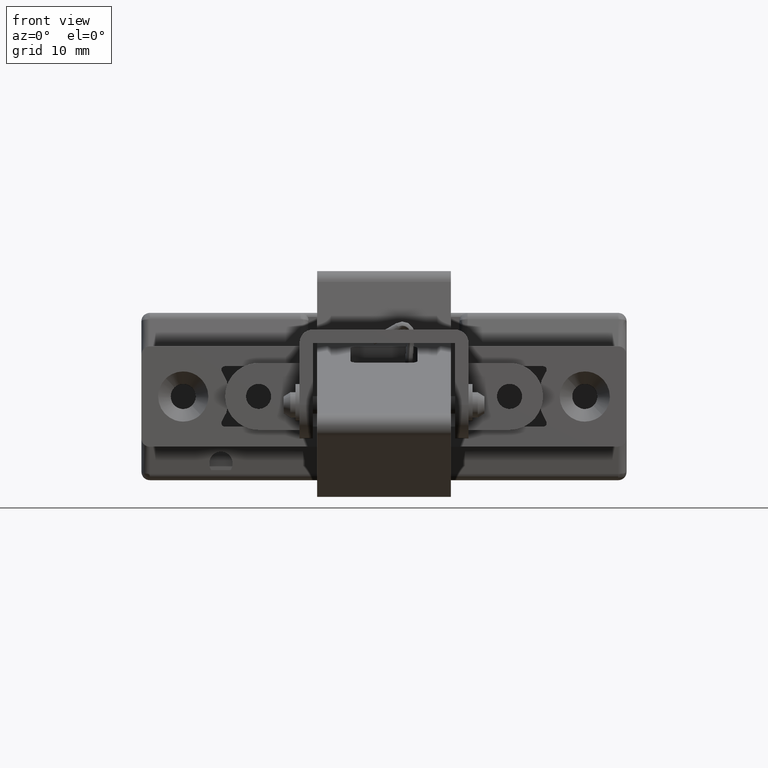
[diagram: clean part render]
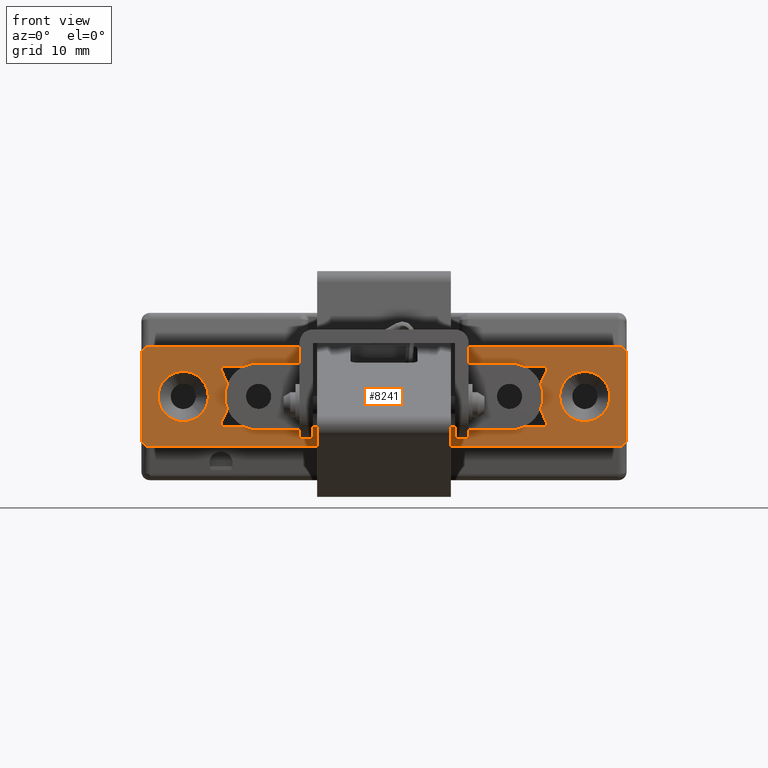
[diagram: same view with one face highlighted and labeled with its STEP entity id]
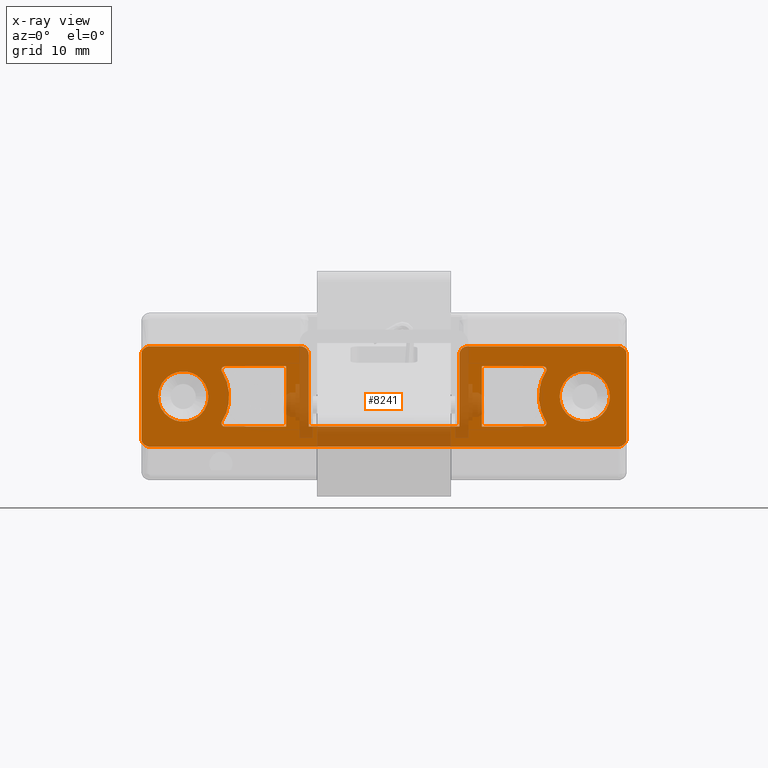
[diagram: x-ray of the same camera — body ghosted, the highlighted face saturated]
A machine part, front view. The second image highlights one B-rep face of the part: STEP entity #8241.
The next image is the same camera in x-ray: the body ghosted, the highlighted face saturated — about 20% of this face is hidden behind the body in this view.
In plain terms, the highlighted face is a freeform B-spline surface patch.
Its self-contained STEP definition (entity closure, byte-faithful):
#5207=CARTESIAN_POINT('',(-21.934936870026011,8.600001863609514,-1.176122483819216));
#5208=VERTEX_POINT('',#5207);
#5214=CARTESIAN_POINT('',(-21.000000000000892,8.600001574462887,1.000002316347126));
#5215=VERTEX_POINT('',#5214);
#5216=CARTESIAN_POINT('',(-21.934936870026011,8.600001863609514,-1.176122483819216));
#5217=CARTESIAN_POINT('',(-21.769330079526611,8.600001842736333,-1.019030040535998));
#5218=CARTESIAN_POINT('',(-21.490684678965462,8.600001798533370,-0.686358400947592));
#5219=CARTESIAN_POINT('',(-21.112516988428808,8.600001702487283,0.036490042469381));
#5220=CARTESIAN_POINT('',(-20.999606290084891,8.600001625020184,0.619504733129576));
#5221=CARTESIAN_POINT('',(-21.000000000000892,8.600001574462887,1.000002316347126));
#5222=B_SPLINE_CURVE_WITH_KNOTS('',3,(#5216,#5217,#5218,#5219,#5220,#5221),.UNSPECIFIED.,.F.,.U.,(4,1,1,4),(0.000000021353518,0.684787980849749,1.293487832255275,2.434801507614659),.UNSPECIFIED.);
#5223=EDGE_CURVE('',#5208,#5215,#5222,.T.);
#5225=CARTESIAN_POINT('',(-24.0,8.600001574462887,4.0));
#5226=VERTEX_POINT('',#5225);
#5227=CARTESIAN_POINT('',(-21.000000000000892,8.600001574462887,1.000002316347126));
#5228=CARTESIAN_POINT('',(-20.999648457065451,8.600001574462922,1.368218827966611));
#5229=CARTESIAN_POINT('',(-21.105310213641399,8.600001574462780,1.932450565423788));
#5230=CARTESIAN_POINT('',(-21.482336201270559,8.600001574463029,2.681457940744734));
#5231=CARTESIAN_POINT('',(-21.976607207528790,8.600001574462830,3.269017595811709));
#5232=CARTESIAN_POINT('',(-22.616134922671030,8.600001574462787,3.696312454333611));
#5233=CARTESIAN_POINT('',(-23.312811768276180,8.600001574463072,3.945457808376830));
#5234=CARTESIAN_POINT('',(-23.754562744427069,8.600001574462738,4.000062684554560));
#5235=CARTESIAN_POINT('',(-24.0,8.600001574462887,4.0));
#5236=B_SPLINE_CURVE_WITH_KNOTS('',3,(#5227,#5228,#5229,#5230,#5231,#5232,#5233,#5234,#5235),.UNSPECIFIED.,.F.,.U.,(4,1,1,1,1,1,4),(0.000000045917643,1.104490683992258,1.693570454718966,2.503515224525072,3.387107495327922,3.976190981014883,4.712505927439493),.UNSPECIFIED.);
#5237=EDGE_CURVE('',#5215,#5226,#5236,.T.);
#5239=CARTESIAN_POINT('',(-26.065063129973989,8.600001863609521,3.176122483819214));
#5240=VERTEX_POINT('',#5239);
#5241=CARTESIAN_POINT('',(-24.0,8.600001574462887,4.0));
#5242=CARTESIAN_POINT('',(-24.189803381663669,8.600001601038855,4.000011779235152));
#5243=CARTESIAN_POINT('',(-24.640594101383169,8.600001664157809,3.957133647381435));
#5244=CARTESIAN_POINT('',(-25.367363848230291,8.600001765918897,3.716082278679606));
#5245=CARTESIAN_POINT('',(-25.841426058480369,8.600001832296321,3.388560804448808));
#5246=CARTESIAN_POINT('',(-26.065063129973989,8.600001863609521,3.176122483819214));
#5247=B_SPLINE_CURVE_WITH_KNOTS('',3,(#5241,#5242,#5243,#5244,#5245,#5246),.UNSPECIFIED.,.F.,.U.,(4,1,1,4),(0.000000027667876,0.569426959179674,1.352380202538002,2.277707753460141),.UNSPECIFIED.);
#5248=EDGE_CURVE('',#5226,#5240,#5247,.T.);
#5284=CARTESIAN_POINT('',(-26.999999999999108,8.600001574462887,0.999997683652868));
#5285=VERTEX_POINT('',#5284);
#5286=CARTESIAN_POINT('',(-26.065063129973989,8.600001863609521,3.176122483819214));
#5287=CARTESIAN_POINT('',(-26.304398968574318,8.600001833471680,2.949305599258741));
#5288=CARTESIAN_POINT('',(-26.629373570689609,8.600001776198504,2.518263779302797));
#5289=CARTESIAN_POINT('',(-26.932287788437598,8.600001675553067,1.760805472212806));
#5290=CARTESIAN_POINT('',(-27.000092546114310,8.600001611532662,1.278985865811381));
#5291=CARTESIAN_POINT('',(-26.999999999999108,8.600001574462887,0.999997683652868));
#5292=B_SPLINE_CURVE_WITH_KNOTS('',3,(#5286,#5287,#5288,#5289,#5290,#5291),.UNSPECIFIED.,.F.,.U.,(4,1,1,4),(0.000000021353332,0.989138760576690,1.597838172398296,2.434801507614661),.UNSPECIFIED.);
#5293=EDGE_CURVE('',#5240,#5285,#5292,.T.);
#5295=CARTESIAN_POINT('',(-24.0,8.600001574462887,-2.0));
#5296=VERTEX_POINT('',#5295);
#5297=CARTESIAN_POINT('',(-26.999999999999108,8.600001574462887,0.999997683652868));
#5298=CARTESIAN_POINT('',(-27.000350169062191,8.600001574462908,0.631781022421027));
#5299=CARTESIAN_POINT('',(-26.894690375594141,8.600001574462844,0.067550730723855));
#5300=CARTESIAN_POINT('',(-26.517666414313240,8.600001574463015,-0.681465716639533));
#5301=CARTESIAN_POINT('',(-26.087145248218938,8.600001574462823,-1.193151184888421));
#5302=CARTESIAN_POINT('',(-25.552247553645099,8.600001574462816,-1.589763091005514));
#5303=CARTESIAN_POINT('',(-24.883432834927451,8.600001574463079,-1.906170359497045));
#5304=CARTESIAN_POINT('',(-24.343648430978192,8.600001574462709,-2.000244412533779));
#5305=CARTESIAN_POINT('',(-24.0,8.600001574462887,-2.0));
#5306=B_SPLINE_CURVE_WITH_KNOTS('',3,(#5297,#5298,#5299,#5300,#5301,#5302,#5303,#5304,#5305),.UNSPECIFIED.,.F.,.U.,(4,1,1,1,1,1,4),(0.000000045918904,1.104490683993163,1.693570454719709,2.503515224525626,3.092567931035752,3.681651415329908,4.712505927439492),.UNSPECIFIED.);
#5307=EDGE_CURVE('',#5285,#5296,#5306,.T.);
#5309=CARTESIAN_POINT('',(-24.0,8.600001574462887,-2.0));
#5310=CARTESIAN_POINT('',(-23.644077714742881,8.600001624298585,-2.000276917367970));
#5311=CARTESIAN_POINT('',(-22.885096753272791,8.600001730569503,-1.863205912246193));
#5312=CARTESIAN_POINT('',(-22.227215888957168,8.600001822685385,-1.454180365256255));
#5313=CARTESIAN_POINT('',(-21.934936870026011,8.600001863609514,-1.176122483819216));
#5314=B_SPLINE_CURVE_WITH_KNOTS('',3,(#5309,#5310,#5311,#5312,#5313),.UNSPECIFIED.,.F.,.U.,(4,1,4),(0.000000027667611,1.067680060700980,2.277707753460144),.UNSPECIFIED.);
#5315=EDGE_CURVE('',#5296,#5208,#5314,.T.);
#5483=CARTESIAN_POINT('',(26.065063129973989,8.600001863609514,-1.176122483819217));
#5484=VERTEX_POINT('',#5483);
#5490=CARTESIAN_POINT('',(26.999999999999108,8.600001574462887,1.000002316347126));
#5491=VERTEX_POINT('',#5490);
#5492=CARTESIAN_POINT('',(26.065063129973989,8.600001863609514,-1.176122483819217));
#5493=CARTESIAN_POINT('',(26.341344716576820,8.600001828845841,-0.914489462378228));
#5494=CARTESIAN_POINT('',(26.656480604464949,8.600001770222512,-0.473289776609436));
#5495=CARTESIAN_POINT('',(26.939391639276650,8.600001668811629,0.289932710950813));
#5496=CARTESIAN_POINT('',(27.000101525505769,8.600001611533415,0.721007443260770));
#5497=CARTESIAN_POINT('',(26.999999999999108,8.600001574462887,1.000002316347126));
#5498=B_SPLINE_CURVE_WITH_KNOTS('',3,(#5492,#5493,#5494,#5495,#5496,#5497),.UNSPECIFIED.,.F.,.U.,(4,1,1,4),(0.000000021353209,1.141313696580520,1.597838172398286,2.434801507614653),.UNSPECIFIED.);
#5499=EDGE_CURVE('',#5484,#5491,#5498,.T.);
#5501=CARTESIAN_POINT('',(24.0,8.600001574462887,4.0));
#5502=VERTEX_POINT('',#5501);
#5503=CARTESIAN_POINT('',(26.999999999999108,8.600001574462887,1.000002316347126));
#5504=CARTESIAN_POINT('',(27.000354754296271,8.600001574462965,1.368220831818718));
#5505=CARTESIAN_POINT('',(26.894679530675749,8.600001574462830,1.932442082294269));
#5506=CARTESIAN_POINT('',(26.517680681340838,8.600001574462837,2.681475183810091));
#5507=CARTESIAN_POINT('',(26.087130199448708,8.600001574463057,3.193131953860975));
#5508=CARTESIAN_POINT('',(25.473044053613741,8.600001574462702,3.648627251801658));
#5509=CARTESIAN_POINT('',(24.785413433775130,8.600001574463342,3.933449836966517));
#5510=CARTESIAN_POINT('',(24.245429020158969,8.600001574462020,4.000039475886011));
#5511=CARTESIAN_POINT('',(24.0,8.600001574462887,4.0));
#5512=B_SPLINE_CURVE_WITH_KNOTS('',3,(#5503,#5504,#5505,#5506,#5507,#5508,#5509,#5510,#5511),.UNSPECIFIED.,.F.,.U.,(4,1,1,1,1,1,4),(0.000000045920274,1.104490683994108,1.693570454720435,2.503515224526053,3.092567931035931,3.976190981015049,4.712505927439490),.UNSPECIFIED.);
#5513=EDGE_CURVE('',#5491,#5502,#5512,.T.);
#5515=CARTESIAN_POINT('',(21.934936870026011,8.600001863609506,3.176122483819217));
#5516=VERTEX_POINT('',#5515);
#5517=CARTESIAN_POINT('',(24.0,8.600001574462887,4.0));
#5518=CARTESIAN_POINT('',(23.691543518219781,8.600001617652431,4.000154335041777));
#5519=CARTESIAN_POINT('',(23.193415805425001,8.600001687399491,3.922450598432195));
#5520=CARTESIAN_POINT('',(22.491967998992699,8.600001785614893,3.623094545139219));
#5521=CARTESIAN_POINT('',(22.124198392185018,8.600001837109524,3.355832437550590));
#5522=CARTESIAN_POINT('',(21.934936870026011,8.600001863609506,3.176122483819217));
#5523=B_SPLINE_CURVE_WITH_KNOTS('',3,(#5517,#5518,#5519,#5520,#5521,#5522),.UNSPECIFIED.,.F.,.U.,(4,1,1,4),(0.000000027667177,0.925327578611280,1.494738078887079,2.277707753460154),.UNSPECIFIED.);
#5524=EDGE_CURVE('',#5502,#5516,#5523,.T.);
#5560=CARTESIAN_POINT('',(21.000000000000892,8.600001574462880,0.999997683652869));
#5561=VERTEX_POINT('',#5560);
#5562=CARTESIAN_POINT('',(21.934936870026011,8.600001863609506,3.176122483819217));
#5563=CARTESIAN_POINT('',(21.769330313869489,8.600001842736511,3.019031761277854));
#5564=CARTESIAN_POINT('',(21.490684022060940,8.600001798533185,2.686356536429725));
#5565=CARTESIAN_POINT('',(21.112516633324741,8.600001702487099,1.963510399972654));
#5566=CARTESIAN_POINT('',(20.999608068874078,8.600001625020674,1.380496699390820));
#5567=CARTESIAN_POINT('',(21.000000000000892,8.600001574462880,0.999997683652869));
#5568=B_SPLINE_CURVE_WITH_KNOTS('',3,(#5562,#5563,#5564,#5565,#5566,#5567),.UNSPECIFIED.,.F.,.U.,(4,1,1,4),(0.000000021353088,0.684787980849486,1.293487832255167,2.434801507614660),.UNSPECIFIED.);
#5569=EDGE_CURVE('',#5516,#5561,#5568,.T.);
#5571=CARTESIAN_POINT('',(24.0,8.600001574462887,-2.0));
#5572=VERTEX_POINT('',#5571);
#5573=CARTESIAN_POINT('',(21.000000000000892,8.600001574462880,0.999997683652869));
#5574=CARTESIAN_POINT('',(20.999834320340650,8.600001574462866,0.680909506954153));
#5575=CARTESIAN_POINT('',(21.083035720084919,8.600001574462795,0.165618724409334));
#5576=CARTESIAN_POINT('',(21.422808894836379,8.600001574463022,-0.601033174363167));
#5577=CARTESIAN_POINT('',(21.873147772842341,8.600001574462887,-1.163836467429129));
#5578=CARTESIAN_POINT('',(22.447771644858761,8.600001574462866,-1.589752180252324));
#5579=CARTESIAN_POINT('',(23.116569855990360,8.600001574462937,-1.906147667127998));
#5580=CARTESIAN_POINT('',(23.656350074950879,8.600001574462887,-2.000268605916505));
#5581=CARTESIAN_POINT('',(24.0,8.600001574462887,-2.0));
#5582=B_SPLINE_CURVE_WITH_KNOTS('',3,(#5573,#5574,#5575,#5576,#5577,#5578,#5579,#5580,#5581),.UNSPECIFIED.,.F.,.U.,(4,1,1,1,1,1,4),(0.000000045918001,0.957218893366678,1.546303359711513,2.503515224525304,3.092567931035563,3.681651415329818,4.712505927439497),.UNSPECIFIED.);
#5583=EDGE_CURVE('',#5561,#5572,#5582,.T.);
#5585=CARTESIAN_POINT('',(24.0,8.600001574462887,-2.0));
#5586=CARTESIAN_POINT('',(24.403415125098519,8.600001630948306,-2.000500775928558));
#5587=CARTESIAN_POINT('',(25.162177964888510,8.600001737189196,-1.844348533342900));
#5588=CARTESIAN_POINT('',(25.807076368901690,8.600001827486651,-1.421323877760019));
#5589=CARTESIAN_POINT('',(26.065063129973989,8.600001863609514,-1.176122483819217));
#5590=B_SPLINE_CURVE_WITH_KNOTS('',3,(#5585,#5586,#5587,#5588,#5589),.UNSPECIFIED.,.F.,.U.,(4,1,4),(0.000000027666575,1.210027720350886,2.277707753460151),.UNSPECIFIED.);
#5591=EDGE_CURVE('',#5572,#5484,#5590,.T.);
#6666=CARTESIAN_POINT('',(-28.0,8.600001574462887,7.0));
#6667=VERTEX_POINT('',#6666);
#6668=CARTESIAN_POINT('',(-29.0,8.600001574462887,6.0));
#6669=VERTEX_POINT('',#6668);
#6670=CARTESIAN_POINT('',(-28.0,8.600001574462887,7.0));
#6671=CARTESIAN_POINT('',(-28.130930301839630,8.600001574462951,7.000156741388042));
#6672=CARTESIAN_POINT('',(-28.343512062586338,8.600001574462880,6.957582490994970));
#6673=CARTESIAN_POINT('',(-28.623262231982999,8.600001574462944,6.799142954395056));
#6674=CARTESIAN_POINT('',(-28.796839233856311,8.600001574462880,6.621240393916221));
#6675=CARTESIAN_POINT('',(-28.953976564198499,8.600001574462901,6.351626464571268));
#6676=CARTESIAN_POINT('',(-29.000234262794461,8.600001574462901,6.147318090989190));
#6677=CARTESIAN_POINT('',(-29.0,8.600001574462887,6.0));
#6678=B_SPLINE_CURVE_WITH_KNOTS('',3,(#6670,#6671,#6672,#6673,#6674,#6675,#6676,#6677),.UNSPECIFIED.,.F.,.U.,(4,1,1,1,1,4),(0.000000279997836,0.392709146095597,0.638180683295783,0.957225879064779,1.129035262302666,1.570835744388566),.UNSPECIFIED.);
#6679=EDGE_CURVE('',#6667,#6669,#6678,.T.);
#6788=CARTESIAN_POINT('',(-29.0,8.600001574462887,-4.0));
#6789=VERTEX_POINT('',#6788);
#6790=CARTESIAN_POINT('',(-28.0,8.600001574462887,-5.0));
#6791=VERTEX_POINT('',#6790);
#6792=CARTESIAN_POINT('',(-29.0,8.600001574462887,-4.0));
#6793=CARTESIAN_POINT('',(-29.000224541102732,8.600001574462887,-4.147300637481775));
#6794=CARTESIAN_POINT('',(-28.942907750886739,8.600001574462930,-4.400720712991858));
#6795=CARTESIAN_POINT('',(-28.717942977219799,8.600001574462631,-4.728777161010343));
#6796=CARTESIAN_POINT('',(-28.400836381079170,8.600001574463626,-4.946296087896523));
#6797=CARTESIAN_POINT('',(-28.130907834079601,8.600001574461523,-5.000122441849071));
#6798=CARTESIAN_POINT('',(-28.0,8.600001574462887,-5.0));
#6799=B_SPLINE_CURVE_WITH_KNOTS('',3,(#6792,#6793,#6794,#6795,#6796,#6797,#6798),.UNSPECIFIED.,.F.,.U.,(4,1,1,1,4),(0.000000279995330,0.441800762081835,0.760915527725580,1.178126878290096,1.570835744388615),.UNSPECIFIED.);
#6800=EDGE_CURVE('',#6789,#6791,#6799,.T.);
#6914=CARTESIAN_POINT('',(29.0,8.600001574462887,6.0));
#6915=VERTEX_POINT('',#6914);
#6916=CARTESIAN_POINT('',(28.0,8.600001574462887,7.0));
#6917=VERTEX_POINT('',#6916);
#6918=CARTESIAN_POINT('',(29.0,8.600001574462887,6.0));
#6919=CARTESIAN_POINT('',(29.000214112180721,8.600001574462908,6.147302172775362));
#6920=CARTESIAN_POINT('',(28.937436686232591,8.600001574462901,6.425258301743768));
#6921=CARTESIAN_POINT('',(28.699002085988170,8.600001574462901,6.746857558640517));
#6922=CARTESIAN_POINT('',(28.376242705290089,8.600001574462894,6.951084139699844));
#6923=CARTESIAN_POINT('',(28.130923767060800,8.600001574462915,7.000145838439427));
#6924=CARTESIAN_POINT('',(28.0,8.600001574462887,7.0));
#6925=B_SPLINE_CURVE_WITH_KNOTS('',3,(#6918,#6919,#6920,#6921,#6922,#6923,#6924),.UNSPECIFIED.,.F.,.U.,(4,1,1,1,4),(0.000000279993393,0.441800762080547,0.834486786449542,1.178126878289717,1.570835744388621),.UNSPECIFIED.);
#6926=EDGE_CURVE('',#6915,#6917,#6925,.T.);
#6956=CARTESIAN_POINT('',(28.0,8.600001574462887,-5.0));
#6957=VERTEX_POINT('',#6956);
#6958=CARTESIAN_POINT('',(29.0,8.600001574462887,-4.0));
#6959=VERTEX_POINT('',#6958);
#6960=CARTESIAN_POINT('',(28.0,8.600001574462887,-5.0));
#6961=CARTESIAN_POINT('',(28.155512360616779,8.600001574462986,-5.000294348409752));
#6962=CARTESIAN_POINT('',(28.384312252874139,8.600001574462844,-4.945465183329634));
#6963=CARTESIAN_POINT('',(28.653390847465989,8.600001574463015,-4.770337533842955));
#6964=CARTESIAN_POINT('',(28.816335945293670,8.600001574462816,-4.594937151883274));
#6965=CARTESIAN_POINT('',(28.959226176082971,8.600001574463107,-4.335329623914280));
#6966=CARTESIAN_POINT('',(29.000154059012619,8.600001574462645,-4.130930578838938));
#6967=CARTESIAN_POINT('',(29.0,8.600001574462887,-4.0));
#6968=B_SPLINE_CURVE_WITH_KNOTS('',3,(#6960,#6961,#6962,#6963,#6964,#6965,#6966,#6967),.UNSPECIFIED.,.F.,.U.,(4,1,1,1,1,4),(0.000000279994789,0.466349647969191,0.687268936191414,0.957225879063514,1.178126878290143,1.570835744388620),.UNSPECIFIED.);
#6969=EDGE_CURVE('',#6957,#6959,#6968,.T.);
#7285=CARTESIAN_POINT('',(10.0,8.600001574462887,7.0));
#7286=VERTEX_POINT('',#7285);
#7287=CARTESIAN_POINT('',(8.999999999999901,8.600001574462887,6.0));
#7288=VERTEX_POINT('',#7287);
#7289=CARTESIAN_POINT('',(10.0,8.600001574462887,7.0));
#7290=CARTESIAN_POINT('',(9.869078381414594,8.600001574462866,7.000119579995428));
#7291=CARTESIAN_POINT('',(9.664661244836918,8.600001574462837,6.959256066428073));
#7292=CARTESIAN_POINT('',(9.405070105598545,8.600001574462716,6.816328135032036));
#7293=CARTESIAN_POINT('',(9.223603743186533,8.600001574462780,6.647775086903576));
#7294=CARTESIAN_POINT('',(9.051549809371178,8.600001574462809,6.376176821054971));
#7295=CARTESIAN_POINT('',(8.999786156700845,8.600001574462958,6.147308932113535));
#7296=CARTESIAN_POINT('',(8.999999999999901,8.600001574462887,6.0));
#7297=B_SPLINE_CURVE_WITH_KNOTS('',3,(#7289,#7290,#7291,#7292,#7293,#7294,#7295,#7296),.UNSPECIFIED.,.F.,.U.,(4,1,1,1,1,4),(0.000000279992658,0.392709146091566,0.613610145318450,0.883567088190846,1.129035262301167,1.570835744388755),.UNSPECIFIED.);
#7298=EDGE_CURVE('',#7286,#7288,#7297,.T.);
#7440=CARTESIAN_POINT('',(-9.0,8.600001574462887,6.0));
#7441=VERTEX_POINT('',#7440);
#7442=CARTESIAN_POINT('',(-10.0,8.600001574462887,7.0));
#7443=VERTEX_POINT('',#7442);
#7444=CARTESIAN_POINT('',(-9.0,8.600001574462887,6.0));
#7445=CARTESIAN_POINT('',(-8.999721574330176,8.600001574462965,6.155497132762284));
#7446=CARTESIAN_POINT('',(-9.070089169898925,8.600001574462787,6.449751630466185));
#7447=CARTESIAN_POINT('',(-9.331226978556563,8.600001574462674,6.776187487051340));
#7448=CARTESIAN_POINT('',(-9.656422081281914,8.600001574463107,6.960223230222810));
#7449=CARTESIAN_POINT('',(-9.885457825528697,8.600001574462631,7.000070319244284));
#7450=CARTESIAN_POINT('',(-10.0,8.600001574462887,7.0));
#7451=B_SPLINE_CURVE_WITH_KNOTS('',3,(#7444,#7445,#7446,#7447,#7448,#7449,#7450),.UNSPECIFIED.,.F.,.U.,(4,1,1,1,4),(0.000000279992817,0.466349647967911,0.883567088191084,1.227218494278090,1.570835744388625),.UNSPECIFIED.);
#7452=EDGE_CURVE('',#7441,#7443,#7451,.T.);
#7575=CARTESIAN_POINT('',(11.699999999999999,8.600001574462887,-2.599999999999910));
#7576=VERTEX_POINT('',#7575);
#7577=CARTESIAN_POINT('',(19.043186507442400,8.600001574462787,-2.599999999999905));
#7578=VERTEX_POINT('',#7577);
#7579=CARTESIAN_POINT('',(11.699999999999999,8.600001574462887,-2.599999999999910));
#7580=CARTESIAN_POINT('',(19.043186507442400,8.600001574462787,-2.599999999999905));
#7581=QUASI_UNIFORM_CURVE('',1,(#7579,#7580),.UNSPECIFIED.,.F.,.U.);
#7582=EDGE_CURVE('',#7576,#7578,#7581,.T.);
#7612=CARTESIAN_POINT('',(19.379241659480201,8.600001574462787,-1.983050847457540));
#7613=VERTEX_POINT('',#7612);
#7621=CARTESIAN_POINT('',(19.379241659480201,8.600001574462787,-1.983050847457540));
#7622=CARTESIAN_POINT('',(19.428178510960361,8.600001574462716,-2.057955620368106));
#7623=CARTESIAN_POINT('',(19.465196093877370,8.600001574463050,-2.214035024109027));
#7624=CARTESIAN_POINT('',(19.402413179186802,8.600001574462475,-2.396362904253315));
#7625=CARTESIAN_POINT('',(19.315250262982300,8.600001574463072,-2.499745498439429));
#7626=CARTESIAN_POINT('',(19.203902552413290,8.600001574462617,-2.576467373471592));
#7627=CARTESIAN_POINT('',(19.105744590531451,8.600001574462773,-2.600113197675070));
#7628=CARTESIAN_POINT('',(19.043186507442400,8.600001574462787,-2.599999999999905));
#7629=B_SPLINE_CURVE_WITH_KNOTS('',3,(#7621,#7622,#7623,#7624,#7625,#7626,#7627,#7628),.UNSPECIFIED.,.F.,.U.,(4,1,1,1,1,4),(0.000000524196228,0.268063263144312,0.455689204371545,0.562914255028338,0.670143223095430,0.857782241883175),.UNSPECIFIED.);
#7630=EDGE_CURVE('',#7613,#7578,#7629,.T.);
#7649=CARTESIAN_POINT('',(19.379241659480300,8.600001574462787,3.983050847457730));
#7650=VERTEX_POINT('',#7649);
#7651=CARTESIAN_POINT('',(19.379241659480201,8.600001574462787,-1.983050847457540));
#7652=CARTESIAN_POINT('',(19.201101684567469,8.600001574462823,-1.707141229223258));
#7653=CARTESIAN_POINT('',(18.832993410467939,8.600001574462773,-1.006522122309425));
#7654=CARTESIAN_POINT('',(18.551795315728452,8.600001574462759,0.014674307269353));
#7655=CARTESIAN_POINT('',(18.466903410663580,8.600001574462873,1.197072598707845));
#7656=CARTESIAN_POINT('',(18.632441050560381,8.600001574462567,2.510738496454342));
#7657=CARTESIAN_POINT('',(19.058310657966640,8.600001574462638,3.486534875694747));
#7658=CARTESIAN_POINT('',(19.379241659480300,8.600001574462787,3.983050847457730));
#7659=B_SPLINE_CURVE_WITH_KNOTS('',3,(#7651,#7652,#7653,#7654,#7655,#7656,#7657,#7658),.UNSPECIFIED.,.F.,.U.,(4,1,1,1,1,4),(0.000000021365872,0.985290261591729,2.364732290458177,3.152966325058129,4.532384776278656,6.305932628750569),.UNSPECIFIED.);
#7660=EDGE_CURVE('',#7613,#7650,#7659,.T.);
#7686=CARTESIAN_POINT('',(19.043185999999949,8.600001574462787,4.600000000000110));
#7687=VERTEX_POINT('',#7686);
#7695=CARTESIAN_POINT('',(19.043185999999949,8.600001574462787,4.600000000000110));
#7696=CARTESIAN_POINT('',(19.114699649960659,8.600001574462816,4.600195628812029));
#7697=CARTESIAN_POINT('',(19.230624833014190,8.600001574462645,4.568014927061181));
#7698=CARTESIAN_POINT('',(19.348008123417902,8.600001574462901,4.468325273068269));
#7699=CARTESIAN_POINT('',(19.430378143738171,8.600001574462709,4.339006199261037));
#7700=CARTESIAN_POINT('',(19.458930347224090,8.600001574462787,4.165521863691493));
#7701=CARTESIAN_POINT('',(19.413238126302200,8.600001574462738,4.035541012700057));
#7702=CARTESIAN_POINT('',(19.379241659480300,8.600001574462787,3.983050847457730));
#7703=B_SPLINE_CURVE_WITH_KNOTS('',3,(#7695,#7696,#7697,#7698,#7699,#7700,#7701,#7702),.UNSPECIFIED.,.F.,.U.,(4,1,1,1,1,4),(0.000000524198440,0.214446216311435,0.348488570223018,0.455689474079473,0.670143619759430,0.857782749609773),.UNSPECIFIED.);
#7704=EDGE_CURVE('',#7687,#7650,#7703,.T.);
#7714=CARTESIAN_POINT('',(11.699999999999999,8.600001574462787,4.600000000000110));
#7715=VERTEX_POINT('',#7714);
#7716=CARTESIAN_POINT('',(19.043185999999949,8.600001574462787,4.600000000000110));
#7717=CARTESIAN_POINT('',(11.699999999999999,8.600001574462787,4.600000000000110));
#7718=QUASI_UNIFORM_CURVE('',1,(#7716,#7717),.UNSPECIFIED.,.F.,.U.);
#7719=EDGE_CURVE('',#7687,#7715,#7718,.T.);
#7736=CARTESIAN_POINT('',(11.699999999999999,8.600001574462787,4.600000000000110));
#7737=CARTESIAN_POINT('',(11.699999999999999,8.600001574462887,-2.599999999999910));
#7738=QUASI_UNIFORM_CURVE('',1,(#7736,#7737),.UNSPECIFIED.,.F.,.U.);
#7739=EDGE_CURVE('',#7715,#7576,#7738,.T.);
#7829=CARTESIAN_POINT('',(-19.043186507442400,8.600001574462787,-2.599999999999905));
#7830=VERTEX_POINT('',#7829);
#7837=CARTESIAN_POINT('',(-19.379241659480201,8.600001574462787,-1.983050847457545));
#7838=VERTEX_POINT('',#7837);
#7844=CARTESIAN_POINT('',(-19.043186507442400,8.600001574462787,-2.599999999999905));
#7845=CARTESIAN_POINT('',(-19.096786824549429,8.600001574462830,-2.600041551625048));
#7846=CARTESIAN_POINT('',(-19.212907623407791,8.600001574462723,-2.576344987970379));
#7847=CARTESIAN_POINT('',(-19.368086201091380,8.600001574462795,-2.461850392970211));
#7848=CARTESIAN_POINT('',(-19.441661102106561,8.600001574462837,-2.302077325778028));
#7849=CARTESIAN_POINT('',(-19.446613437757829,8.600001574462695,-2.130831340613563));
#7850=CARTESIAN_POINT('',(-19.413266911522339,8.600001574462937,-2.035547170040060));
#7851=CARTESIAN_POINT('',(-19.379241659480201,8.600001574462787,-1.983050847457545));
#7852=B_SPLINE_CURVE_WITH_KNOTS('',3,(#7844,#7845,#7846,#7847,#7848,#7849,#7850,#7851),.UNSPECIFIED.,.F.,.U.,(4,1,1,1,1,4),(0.000000524197488,0.160831712819838,0.348488363922677,0.562914255028720,0.670143223095645,0.857782241883151),.UNSPECIFIED.);
#7853=EDGE_CURVE('',#7830,#7838,#7852,.T.);
#7863=CARTESIAN_POINT('',(-11.699999999999999,8.600001574462787,-2.599999999999910));
#7864=VERTEX_POINT('',#7863);
#7872=CARTESIAN_POINT('',(-11.699999999999999,8.600001574462787,-2.599999999999910));
#7873=CARTESIAN_POINT('',(-19.043186507442400,8.600001574462787,-2.599999999999905));
#7874=QUASI_UNIFORM_CURVE('',1,(#7872,#7873),.UNSPECIFIED.,.F.,.U.);
#7875=EDGE_CURVE('',#7864,#7830,#7874,.T.);
#7885=CARTESIAN_POINT('',(-11.699999999999999,8.600001574462787,4.600000000000110));
#7886=VERTEX_POINT('',#7885);
#7894=CARTESIAN_POINT('',(-11.699999999999999,8.600001574462787,4.600000000000110));
#7895=CARTESIAN_POINT('',(-11.699999999999999,8.600001574462787,-2.599999999999910));
#7896=QUASI_UNIFORM_CURVE('',1,(#7894,#7895),.UNSPECIFIED.,.F.,.U.);
#7897=EDGE_CURVE('',#7886,#7864,#7896,.T.);
#7907=CARTESIAN_POINT('',(-19.043186507442499,8.600001574462787,4.600000000000110));
#7908=VERTEX_POINT('',#7907);
#7916=CARTESIAN_POINT('',(-19.043186507442499,8.600001574462787,4.600000000000110));
#7917=CARTESIAN_POINT('',(-11.699999999999999,8.600001574462787,4.600000000000110));
#7918=QUASI_UNIFORM_CURVE('',1,(#7916,#7917),.UNSPECIFIED.,.F.,.U.);
#7919=EDGE_CURVE('',#7908,#7886,#7918,.T.);
#7938=CARTESIAN_POINT('',(-19.379241659480300,8.600001574462787,3.983050847457730));
#7939=VERTEX_POINT('',#7938);
#7947=CARTESIAN_POINT('',(-19.379241659480300,8.600001574462787,3.983050847457730));
#7948=CARTESIAN_POINT('',(-19.418182898032029,8.600001574462780,4.043021725000131));
#7949=CARTESIAN_POINT('',(-19.456818886416141,8.600001574462844,4.166717575316028));
#7950=CARTESIAN_POINT('',(-19.428549867317070,8.600001574462674,4.337589474406086));
#7951=CARTESIAN_POINT('',(-19.359549548191112,8.600001574462944,4.454663378617880));
#7952=CARTESIAN_POINT('',(-19.239414440164950,8.600001574462702,4.563774434925545));
#7953=CARTESIAN_POINT('',(-19.123693908155989,8.600001574462588,4.600329923639888));
#7954=CARTESIAN_POINT('',(-19.043186507442499,8.600001574462787,4.600000000000110));
#7955=B_SPLINE_CURVE_WITH_KNOTS('',3,(#7947,#7948,#7949,#7950,#7951,#7952,#7953,#7954),.UNSPECIFIED.,.F.,.U.,(4,1,1,1,1,4),(0.000000524196098,0.214446089378018,0.375293594608550,0.509297940830574,0.616530404149336,0.857782241883184),.UNSPECIFIED.);
#7956=EDGE_CURVE('',#7939,#7908,#7955,.T.);
#7975=CARTESIAN_POINT('',(-19.379241659480300,8.600001574462787,3.983050847457730));
#7976=CARTESIAN_POINT('',(-19.094016308212709,8.600001574462802,3.541667138792272));
#7977=CARTESIAN_POINT('',(-18.762453955193319,8.600001574462844,2.817672234397245));
#7978=CARTESIAN_POINT('',(-18.509604537195489,8.600001574462773,1.659551195340011));
#7979=CARTESIAN_POINT('',(-18.469229286123209,8.600001574462830,0.537143473642431));
#7980=CARTESIAN_POINT('',(-18.728549581099070,8.600001574462951,-0.761294856082354));
#7981=CARTESIAN_POINT('',(-19.129750832055869,8.600001574462823,-1.596813203482747));
#7982=CARTESIAN_POINT('',(-19.379241659480201,8.600001574462787,-1.983050847457545));
#7983=B_SPLINE_CURVE_WITH_KNOTS('',3,(#7975,#7976,#7977,#7978,#7979,#7980,#7981,#7982),.UNSPECIFIED.,.F.,.U.,(4,1,1,1,1,4),(0.000000021366429,1.576483944315176,2.364732290458573,3.547078606872495,4.926514196083399,6.305932628750573),.UNSPECIFIED.);
#7984=EDGE_CURVE('',#7939,#7838,#7983,.T.);
#8021=CARTESIAN_POINT('',(8.999999999999901,8.600001574462887,-2.599999999999910));
#8022=VERTEX_POINT('',#8021);
#8028=CARTESIAN_POINT('',(8.999999999999901,8.600001574462887,-2.599999999999910));
#8029=CARTESIAN_POINT('',(8.999999999999901,8.600001574462887,6.0));
#8030=QUASI_UNIFORM_CURVE('',1,(#8028,#8029),.UNSPECIFIED.,.F.,.U.);
#8031=EDGE_CURVE('',#8022,#7288,#8030,.T.);
#8044=CARTESIAN_POINT('',(-9.0,8.600001574462787,-2.599999999999910));
#8045=VERTEX_POINT('',#8044);
#8056=CARTESIAN_POINT('',(-9.0,8.600001574462887,6.0));
#8057=CARTESIAN_POINT('',(-9.0,8.600001574462787,-2.599999999999910));
#8058=QUASI_UNIFORM_CURVE('',1,(#8056,#8057),.UNSPECIFIED.,.F.,.U.);
#8059=EDGE_CURVE('',#7441,#8045,#8058,.T.);
#8072=CARTESIAN_POINT('',(-9.0,8.600001574462787,-2.599999999999910));
#8073=CARTESIAN_POINT('',(8.999999999999901,8.600001574462887,-2.599999999999910));
#8074=QUASI_UNIFORM_CURVE('',1,(#8072,#8073),.UNSPECIFIED.,.F.,.U.);
#8075=EDGE_CURVE('',#8045,#8022,#8074,.T.);
#8085=CARTESIAN_POINT('',(-29.0,8.600001574462887,6.0));
#8086=CARTESIAN_POINT('',(-29.0,8.600001574462887,-4.0));
#8087=QUASI_UNIFORM_CURVE('',1,(#8085,#8086),.UNSPECIFIED.,.F.,.U.);
#8088=EDGE_CURVE('',#6669,#6789,#8087,.T.);
#8107=CARTESIAN_POINT('',(29.0,8.600001574462887,6.0));
#8108=CARTESIAN_POINT('',(29.0,8.600001574462887,-4.0));
#8109=QUASI_UNIFORM_CURVE('',1,(#8107,#8108),.UNSPECIFIED.,.F.,.U.);
#8110=EDGE_CURVE('',#6915,#6959,#8109,.T.);
#8147=CARTESIAN_POINT('',(28.0,8.600001574462887,-5.0));
#8148=CARTESIAN_POINT('',(-28.0,8.600001574462887,-5.0));
#8149=QUASI_UNIFORM_CURVE('',1,(#8147,#8148),.UNSPECIFIED.,.F.,.U.);
#8150=EDGE_CURVE('',#6957,#6791,#8149,.T.);
#8161=CARTESIAN_POINT('',(28.0,8.600001574462887,7.0));
#8162=CARTESIAN_POINT('',(10.0,8.600001574462887,7.0));
#8163=QUASI_UNIFORM_CURVE('',1,(#8161,#8162),.UNSPECIFIED.,.F.,.U.);
#8164=EDGE_CURVE('',#6917,#7286,#8163,.T.);
#8179=CARTESIAN_POINT('',(-10.0,8.600001574462887,7.0));
#8180=CARTESIAN_POINT('',(-28.0,8.600001574462887,7.0));
#8181=QUASI_UNIFORM_CURVE('',1,(#8179,#8180),.UNSPECIFIED.,.F.,.U.);
#8182=EDGE_CURVE('',#7443,#6667,#8181,.T.);
#8188=CARTESIAN_POINT('',(-31.897099887584751,8.600001574462887,-5.599399976741672));
#8189=CARTESIAN_POINT('',(-31.897099887584751,8.600001574462887,7.599400298606756));
#8190=CARTESIAN_POINT('',(31.897101443265981,8.600001574462887,-5.599399976741672));
#8191=CARTESIAN_POINT('',(31.897101443265981,8.600001574462887,7.599400298606756));
#8192=B_SPLINE_SURFACE_WITH_KNOTS('',1,1,((#8188,#8190),(#8189,#8191)),.UNSPECIFIED.,.F.,.F.,.U.,(2,2),(2,2),(0.0,13.198800275348431),(0.0,63.794201330850733),.UNSPECIFIED.);
#8193=ORIENTED_EDGE('',*,*,#8110,.F.);
#8194=ORIENTED_EDGE('',*,*,#6926,.T.);
#8195=ORIENTED_EDGE('',*,*,#8164,.T.);
#8196=ORIENTED_EDGE('',*,*,#7298,.T.);
#8197=ORIENTED_EDGE('',*,*,#8031,.F.);
#8198=ORIENTED_EDGE('',*,*,#8075,.F.);
#8199=ORIENTED_EDGE('',*,*,#8059,.F.);
#8200=ORIENTED_EDGE('',*,*,#7452,.T.);
#8201=ORIENTED_EDGE('',*,*,#8182,.T.);
#8202=ORIENTED_EDGE('',*,*,#6679,.T.);
#8203=ORIENTED_EDGE('',*,*,#8088,.T.);
#8204=ORIENTED_EDGE('',*,*,#6800,.T.);
#8205=ORIENTED_EDGE('',*,*,#8150,.F.);
#8206=ORIENTED_EDGE('',*,*,#6969,.T.);
#8207=EDGE_LOOP('',(#8193,#8194,#8195,#8196,#8197,#8198,#8199,#8200,#8201,#8202,#8203,#8204,#8205,#8206));
#8208=FACE_OUTER_BOUND('',#8207,.T.);
#8209=ORIENTED_EDGE('',*,*,#7984,.F.);
#8210=ORIENTED_EDGE('',*,*,#7956,.T.);
#8211=ORIENTED_EDGE('',*,*,#7919,.T.);
#8212=ORIENTED_EDGE('',*,*,#7897,.T.);
#8213=ORIENTED_EDGE('',*,*,#7875,.T.);
#8214=ORIENTED_EDGE('',*,*,#7853,.T.);
#8215=EDGE_LOOP('',(#8209,#8210,#8211,#8212,#8213,#8214));
#8216=FACE_BOUND('',#8215,.T.);
#8217=ORIENTED_EDGE('',*,*,#7739,.F.);
#8218=ORIENTED_EDGE('',*,*,#7719,.F.);
#8219=ORIENTED_EDGE('',*,*,#7704,.T.);
#8220=ORIENTED_EDGE('',*,*,#7660,.F.);
#8221=ORIENTED_EDGE('',*,*,#7630,.T.);
#8222=ORIENTED_EDGE('',*,*,#7582,.F.);
#8223=EDGE_LOOP('',(#8217,#8218,#8219,#8220,#8221,#8222));
#8224=FACE_BOUND('',#8223,.T.);
#8225=ORIENTED_EDGE('',*,*,#5513,.F.);
#8226=ORIENTED_EDGE('',*,*,#5499,.F.);
#8227=ORIENTED_EDGE('',*,*,#5591,.F.);
#8228=ORIENTED_EDGE('',*,*,#5583,.F.);
#8229=ORIENTED_EDGE('',*,*,#5569,.F.);
#8230=ORIENTED_EDGE('',*,*,#5524,.F.);
#8231=EDGE_LOOP('',(#8225,#8226,#8227,#8228,#8229,#8230));
#8232=FACE_BOUND('',#8231,.T.);
#8233=ORIENTED_EDGE('',*,*,#5237,.F.);
#8234=ORIENTED_EDGE('',*,*,#5223,.F.);
#8235=ORIENTED_EDGE('',*,*,#5315,.F.);
#8236=ORIENTED_EDGE('',*,*,#5307,.F.);
#8237=ORIENTED_EDGE('',*,*,#5293,.F.);
#8238=ORIENTED_EDGE('',*,*,#5248,.F.);
#8239=EDGE_LOOP('',(#8233,#8234,#8235,#8236,#8237,#8238));
#8240=FACE_BOUND('',#8239,.T.);
#8241=ADVANCED_FACE('',(#8208,#8216,#8224,#8232,#8240),#8192,.F.);